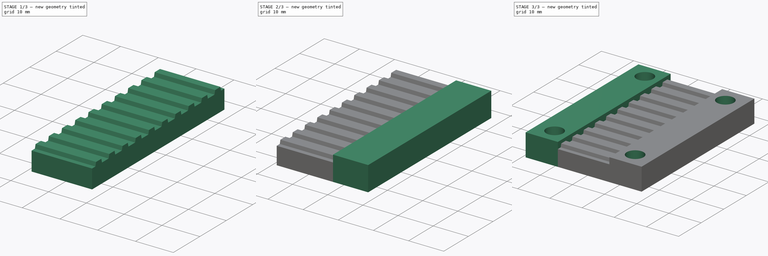
[diagram: build sequence overview — one tinted view per stage of 3, left to right]
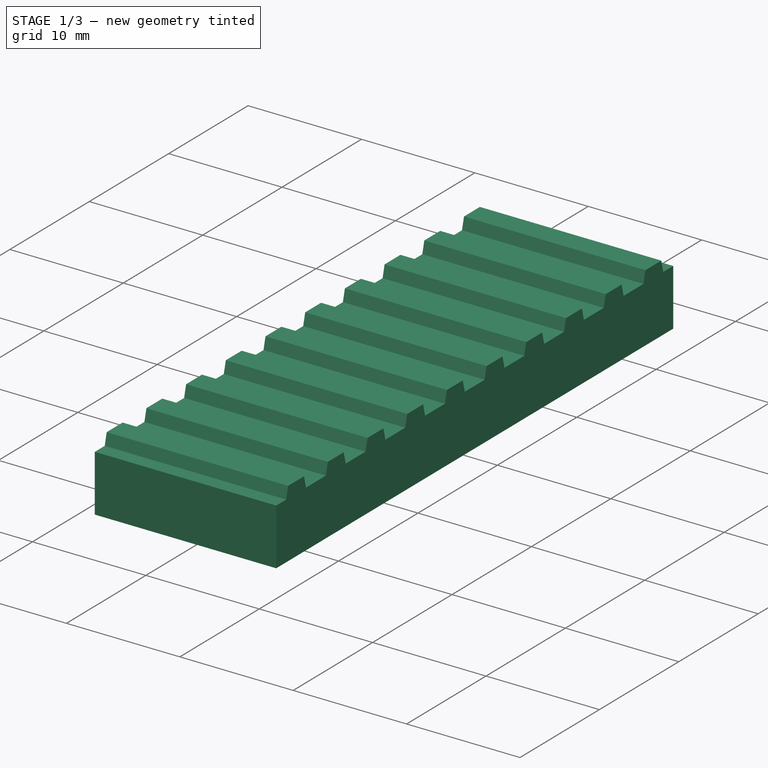
[diagram: stage 1 of 3 — iso view after this stage's code; geometry added in this stage tinted green]
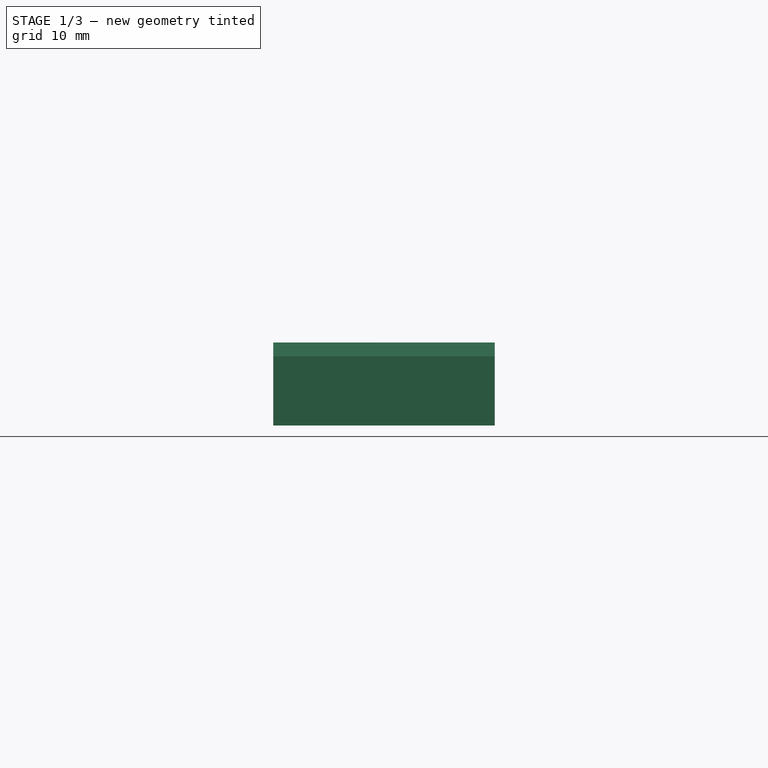
[diagram: stage 1 of 3 — front view after this stage's code; geometry added in this stage tinted green]
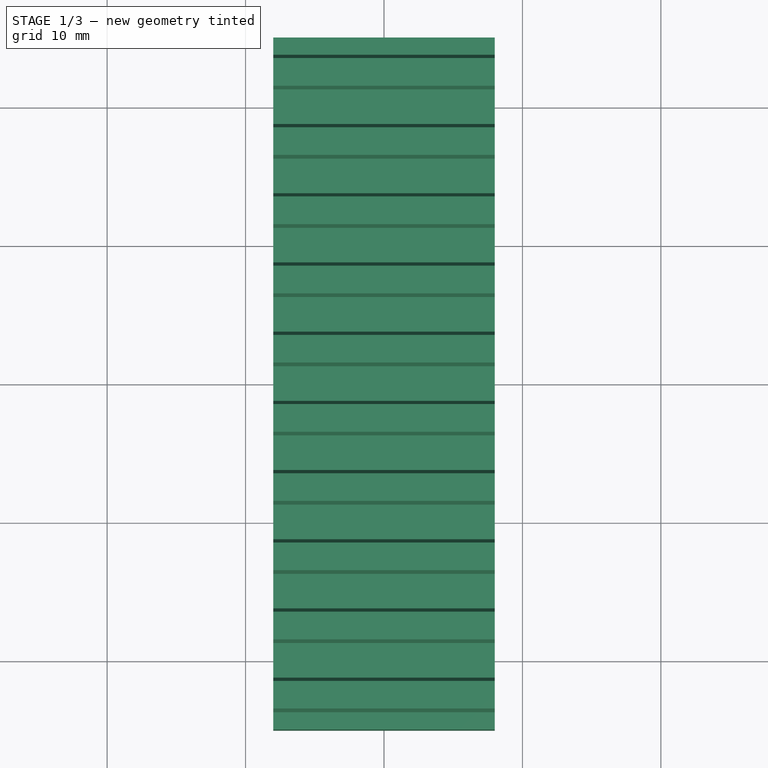
[diagram: stage 1 of 3 — top view after this stage's code; geometry added in this stage tinted green]
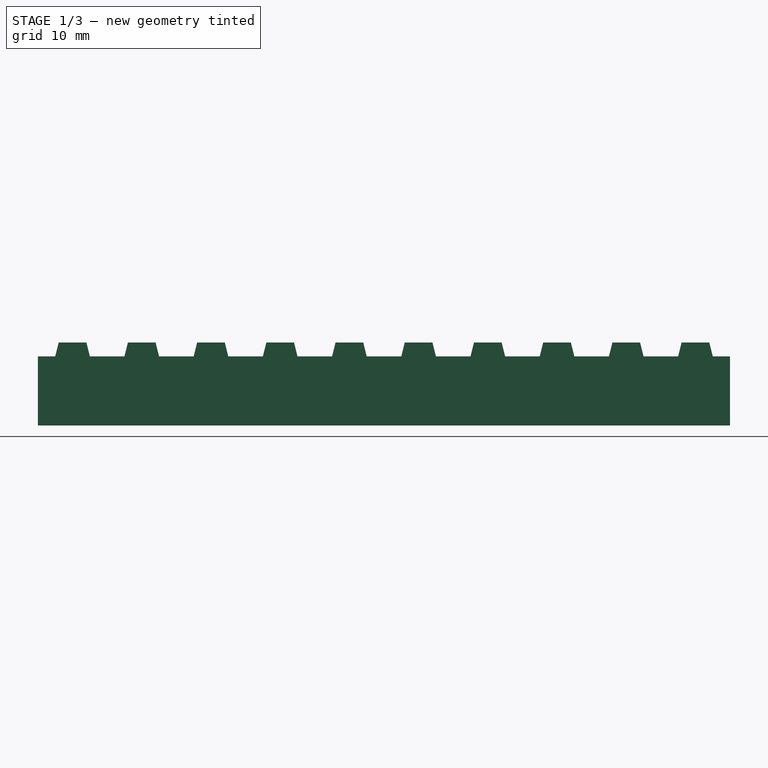
[diagram: stage 1 of 3 — right view after this stage's code; geometry added in this stage tinted green]
FCSTD DOCUMENT  (FreeCAD 0.21R33771 (Git))
Label: MasterLink-16mm
License: All rights reserved
LicenseURL: https://en.wikipedia.org/wiki/All_rights_reserved
objects: Sketcher::SketchObject×5, PartDesign::Pad×4, PartDesign::Pocket×1, PartDesign::Body×1
note: 16 computed .brp shape members not serialized (recipe doc carries the construction recipe); baked Part::Feature solids carry a one-line shape summary decoded from their .brp

FEATURE [Sketcher::SketchObject] Sketch
  FullyConstrained = true
  MapMode = 5
  Support = -> [XY_Plane]
  sketch-geometry (4):
    g0: LineSegment StartX=-8 StartY=-25 StartZ=0 EndX=-8 EndY=25 EndZ=0
    g1: LineSegment StartX=-8 StartY=25 StartZ=0 EndX=8 EndY=25 EndZ=0
    g2: LineSegment StartX=8 StartY=25 StartZ=0 EndX=8 EndY=-25 EndZ=0
    g3: LineSegment StartX=8 StartY=-25 StartZ=0 EndX=-8 EndY=-25 EndZ=0
  constraints (12):
    c: Coincident(g0,g1)
    c: Horizontal(g1)
    c: Coincident(g1,g2)
    c: Vertical(g2)
    c: Coincident(g2,g3)
    c: Coincident(g3,g0)
    c: Horizontal(g3)
    c: Vertical(g0)
    c: DistanceX(g0,g-1) = 8
    c: DistanceX(g0,g1) = 16
    c: DistanceY(g-1,g0) = 25
    c: DistanceY(g2,g1) = 50
FEATURE [PartDesign::Pad] Pad
  Direction = (0,0,1)
  Length = 5
  Length2 = 10
  Profile = -> Sketch
  ReferenceAxis = -> Sketch [N_Axis]
  Type = 0
FEATURE [Sketcher::SketchObject] Sketch001
  ExternalGeometry = -> [Pad]
  FullyConstrained = true
  MapMode = 5
  Placement = pos=(8,0,0) rot=(0.57735,0.57735,0.57735;2.0944rad)
  Support = -> [Pad]
  sketch-geometry (40):
    g0: LineSegment StartX=-23.75 StartY=5 StartZ=0 EndX=-23.5 EndY=6 EndZ=0
    g1: LineSegment StartX=-23.5 StartY=6 StartZ=0 EndX=-21.5 EndY=6 EndZ=0
    g2: LineSegment StartX=-21.5 StartY=6 StartZ=0 EndX=-21.25 EndY=5 EndZ=0
    g3: LineSegment StartX=-21.25 StartY=5 StartZ=0 EndX=-23.75 EndY=5 EndZ=0
    g4: LineSegment StartX=-18.75 StartY=5 StartZ=0 EndX=-18.5 EndY=6 EndZ=0
    g5: LineSegment StartX=-18.5 StartY=6 StartZ=0 EndX=-16.5 EndY=6 EndZ=0
    g6: LineSegment StartX=-16.5 StartY=6 StartZ=0 EndX=-16.25 EndY=5 EndZ=0
    g7: LineSegment StartX=-16.25 StartY=5 StartZ=0 EndX=-18.75 EndY=5 EndZ=0
    g8: LineSegment StartX=-13.75 StartY=5 StartZ=0 EndX=-13.5 EndY=6 EndZ=0
    g9: LineSegment StartX=-13.5 StartY=6 StartZ=0 EndX=-11.5 EndY=6 EndZ=0
    g10: LineSegment StartX=-11.5 StartY=6 StartZ=0 EndX=-11.25 EndY=5 EndZ=0
    g11: LineSegment StartX=-13.75 StartY=5 StartZ=0 EndX=-11.25 EndY=5 EndZ=0
    g12: LineSegment StartX=-8.75 StartY=5 StartZ=0 EndX=-8.5 EndY=6 EndZ=0
    g13: LineSegment StartX=-8.5 StartY=6 StartZ=0 EndX=-6.5 EndY=6 EndZ=0
    g14: LineSegment StartX=-6.5 StartY=6 StartZ=0 EndX=-6.25 EndY=5 EndZ=0
    g15: LineSegment StartX=-6.25 StartY=5 StartZ=0 EndX=-8.75 EndY=5 EndZ=0
    g16: LineSegment StartX=-3.75 StartY=5 StartZ=0 EndX=-3.5 EndY=6 EndZ=0
    g17: LineSegment StartX=-3.5 StartY=6 StartZ=0 EndX=-1.5 EndY=6 EndZ=0
    g18: LineSegment StartX=-1.5 StartY=6 StartZ=0 EndX=-1.25 EndY=5 EndZ=0
    g19: LineSegment StartX=-1.25 StartY=5 StartZ=0 EndX=-3.75 EndY=5 EndZ=0
    g20: LineSegment StartX=1.25 StartY=5 StartZ=0 EndX=1.5 EndY=6 EndZ=0
    g21: LineSegment StartX=1.5 StartY=6 StartZ=0 EndX=3.5 EndY=6 EndZ=0
    g22: LineSegment StartX=3.5 StartY=6 StartZ=0 EndX=3.75 EndY=5 EndZ=0
    g23: LineSegment StartX=3.75 StartY=5 StartZ=0 EndX=1.25 EndY=5 EndZ=0
    g24: LineSegment StartX=6.25 StartY=5 StartZ=0 EndX=6.5 EndY=6 EndZ=0
    g25: LineSegment StartX=6.5 StartY=6 StartZ=0 EndX=8.5 EndY=6 EndZ=0
    g26: LineSegment StartX=8.5 StartY=6 StartZ=0 EndX=8.75 EndY=5 EndZ=0
    g27: LineSegment StartX=8.75 StartY=5 StartZ=0 EndX=6.25 EndY=5 EndZ=0
    g28: LineSegment StartX=11.25 StartY=5 StartZ=0 EndX=11.5 EndY=6 EndZ=0
    g29: LineSegment StartX=11.5 StartY=6 StartZ=0 EndX=13.5 EndY=6 EndZ=0
    g30: LineSegment StartX=13.5 StartY=6 StartZ=0 EndX=13.75 EndY=5 EndZ=0
    g31: LineSegment StartX=13.75 StartY=5 StartZ=0 EndX=11.25 EndY=5 EndZ=0
    g32: LineSegment StartX=16.25 StartY=5 StartZ=0 EndX=16.5 EndY=6 EndZ=0
    g33: LineSegment StartX=16.5 StartY=6 StartZ=0 EndX=18.5 EndY=6 EndZ=0
    g34: LineSegment StartX=18.5 StartY=6 StartZ=0 EndX=18.75 EndY=5 EndZ=0
    g35: LineSegment StartX=18.75 StartY=5 StartZ=0 EndX=16.25 EndY=5 EndZ=0
    g36: LineSegment StartX=21.25 StartY=5 StartZ=0 EndX=21.5 EndY=6 EndZ=0
    g37: LineSegment StartX=21.5 StartY=6 StartZ=0 EndX=23.5 EndY=6 EndZ=0
    g38: LineSegment StartX=23.5 StartY=6 StartZ=0 EndX=23.75 EndY=5 EndZ=0
    g39: LineSegment StartX=23.75 StartY=5 StartZ=0 EndX=21.25 EndY=5 EndZ=0
  constraints (120):
    c: PointOnObject(g0,g-3)
    c: Coincident(g0,g1)
    c: Horizontal(g1)
    c: Coincident(g1,g2)
    c: PointOnObject(g2,g-3)
    c: Coincident(g2,g3)
    c: Coincident(g3,g0)
    c: DistanceX(g0,g2) = 2.5
    c: DistanceX(g0,g1) = 2
    c: DistanceX(g-3,g0) = 1.25
    c: DistanceX(g0,g0) = 0.25
    c: DistanceY(g2,g1) = 1
    c: PointOnObject(g4,g-3)
    c: Coincident(g4,g5)
    c: Horizontal(g5)
    c: Coincident(g5,g6)
    c: PointOnObject(g6,g-3)
    c: Coincident(g6,g7)
    c: Coincident(g7,g4)
    c: DistanceX(g4,g5) = 2
    c: DistanceX(g4,g6) = 2.5
    c: DistanceX(g4,g4) = 0.25
    c: DistanceX(g2,g4) = 2.5
    c: DistanceY(g4,g4) = 1
    c: PointOnObject(g8,g-3)
    c: Coincident(g8,g9)
    c: Horizontal(g9)
    c: Coincident(g9,g10)
    c: PointOnObject(g10,g-3)
    c: Coincident(g8,g11)
    c: Coincident(g11,g10)
    c: PointOnObject(g12,g-3)
    c: Coincident(g12,g13)
    c: Horizontal(g13)
    c: Coincident(g13,g14)
    c: PointOnObject(g14,g-3)
    c: Coincident(g14,g15)
    c: Coincident(g15,g12)
    c: PointOnObject(g16,g-3)
    c: Coincident(g16,g17)
    c: Horizontal(g17)
    c: Coincident(g17,g18)
    c: PointOnObject(g18,g-3)
    c: Coincident(g18,g19)
    c: Coincident(g19,g16)
    c: PointOnObject(g20,g-3)
    c: Coincident(g20,g21)
    c: Horizontal(g21)
    c: Coincident(g21,g22)
    c: PointOnObject(g22,g-3)
    c: Coincident(g22,g23)
    c: Coincident(g23,g20)
    c: DistanceX(g6,g8) = 2.5
    c: DistanceX(g8,g10) = 2.5
    c: DistanceX(g8,g9) = 2
    c: DistanceX(g8,g8) = 0.25
    c: DistanceY(g8,g8) = 1
    c: DistanceX(g10,g12) = 2.5
    c: DistanceX(g12,g14) = 2.5
    c: DistanceX(g12,g13) = 2
    c: DistanceX(g12,g12) = 0.25
    c: DistanceY(g12,g12) = 1
    c: DistanceX(g14,g16) = 2.5
    c: DistanceX(g16,g18) = 2.5
    c: DistanceX(g16,g17) = 2
    c: DistanceX(g16,g16) = 0.25
    c: DistanceY(g16,g16) = 1
    c: DistanceX(g18,g20) = 2.5
    c: DistanceX(g20,g22) = 2.5
    c: DistanceX(g20,g21) = 2
    c: DistanceX(g20,g20) = 0.25
    c: DistanceY(g20,g20) = 1
    c: PointOnObject(g24,g-3)
    c: Coincident(g24,g25)
    c: Horizontal(g25)
    c: Coincident(g25,g26)
    c: PointOnObject(g26,g-3)
    c: Coincident(g26,g27)
    c: Coincident(g27,g24)
    c: PointOnObject(g28,g-3)
    c: Coincident(g28,g29)
    c: Horizontal(g29)
    c: Coincident(g29,g30)
    c: PointOnObject(g30,g-3)
    c: Coincident(g30,g31)
    c: Coincident(g31,g28)
    c: PointOnObject(g32,g-3)
    c: Coincident(g32,g33)
    c: Horizontal(g33)
    c: Coincident(g33,g34)
    c: PointOnObject(g34,g-3)
    c: Coincident(g34,g35)
    c: Coincident(g35,g32)
    c: PointOnObject(g36,g-3)
    c: Coincident(g36,g37)
    c: Horizontal(g37)
    c: Coincident(g37,g38)
    c: PointOnObject(g38,g-3)
    c: Coincident(g38,g39)
    c: Coincident(g39,g36)
    c: DistanceX(g22,g24) = 2.5
    c: DistanceX(g24,g26) = 2.5
    c: DistanceX(g26,g28) = 2.5
    c: DistanceX(g24,g25) = 2
    c: DistanceX(g25,g26) = 0.25
    c: DistanceY(g24,g24) = 1
    c: DistanceX(g32,g34) = 2.5
    c: DistanceX(g32,g33) = 2
    c: DistanceX(g33,g34) = 0.25
    c: DistanceX(g39,g39) = 2.5
    c: DistanceX(g36,g37) = 2
    c: DistanceX(g36,g36) = 0.25
    c: DistanceX(g34,g36) = 2.5
    c: DistanceX(g38,g-3) = 1.25
    c: DistanceX(g30,g32) = 2.5
    c: DistanceX(g29,g30) = 0.25
    c: DistanceX(g28,g29) = 2
    c: DistanceY(g28,g28) = 1
    c: DistanceY(g32,g32) = 1
    c: DistanceY(g36,g36) = 1
FEATURE [PartDesign::Pad] Pad001
  BaseFeature = -> Pad
  Direction = (1,0,0)
  Length = 16
  Length2 = 10
  Profile = -> Sketch001
  ReferenceAxis = -> Sketch001 [N_Axis]
  Reversed = true
  Type = 0
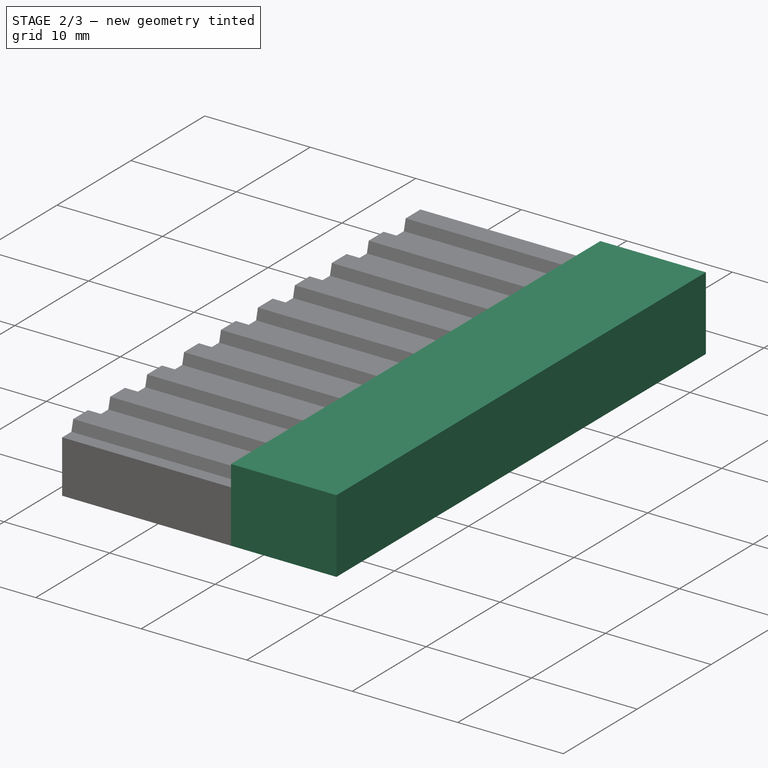
[diagram: stage 2 of 3 — iso view after this stage's code; geometry added in this stage tinted green]
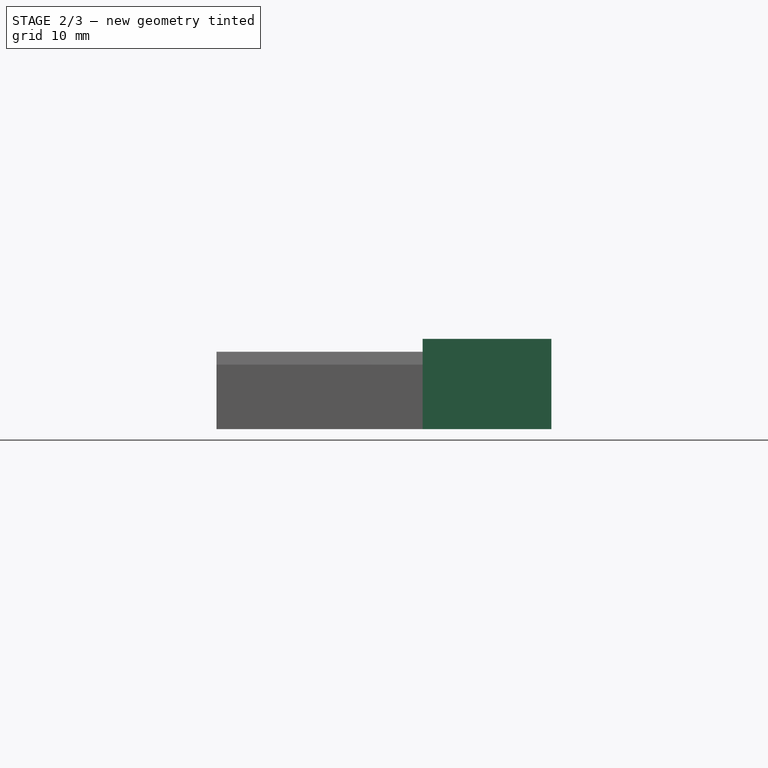
[diagram: stage 2 of 3 — front view after this stage's code; geometry added in this stage tinted green]
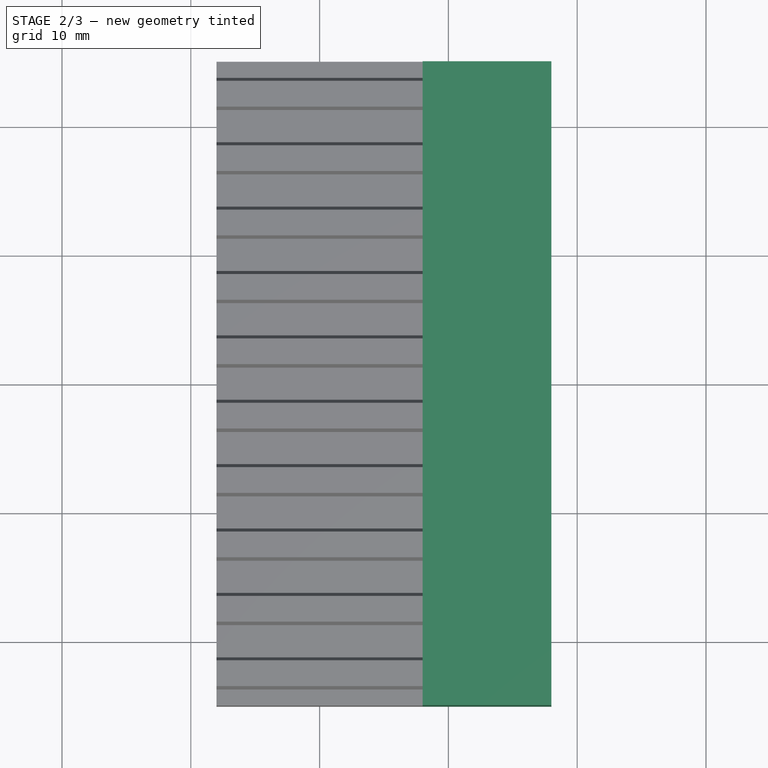
[diagram: stage 2 of 3 — top view after this stage's code; geometry added in this stage tinted green]
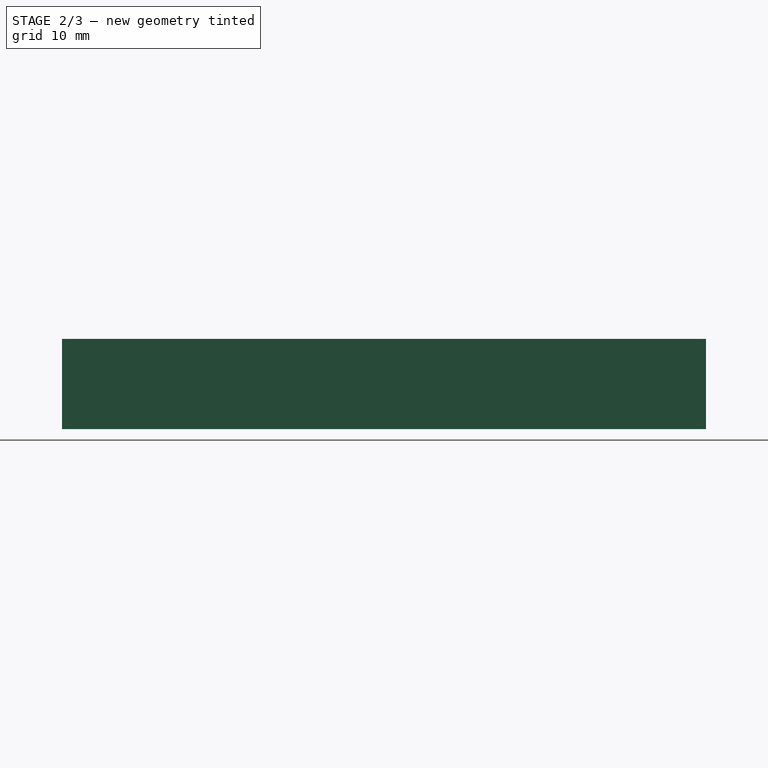
[diagram: stage 2 of 3 — right view after this stage's code; geometry added in this stage tinted green]
FEATURE [Sketcher::SketchObject] Sketch002
  ExternalGeometry = -> [Pad001]
  FullyConstrained = true
  MapMode = 5
  Placement = pos=(0,0,0) rot=(1,0,0;3.14159rad)
  Support = -> [Pad001]
  sketch-geometry (4):
    g0: LineSegment StartX=8 StartY=25 StartZ=0 EndX=18 EndY=25 EndZ=0
    g1: LineSegment StartX=18 StartY=25 StartZ=0 EndX=18 EndY=-25 EndZ=0
    g2: LineSegment StartX=18 StartY=-25 StartZ=0 EndX=8 EndY=-25 EndZ=0
    g3: LineSegment StartX=8 StartY=-25 StartZ=0 EndX=8 EndY=25 EndZ=0
  constraints (10):
    c: Coincident(g-3,g0)
    c: Horizontal(g0)
    c: Coincident(g0,g1)
    c: Vertical(g1)
    c: Coincident(g1,g2)
    c: Coincident(g2,g-3)
    c: Horizontal(g2)
    c: Coincident(g2,g3)
    c: Coincident(g3,g0)
    c: DistanceX(g0,g0) = 10
FEATURE [PartDesign::Pad] Pad002
  BaseFeature = -> Pad001
  Direction = (0,0,-1)
  Length = 7
  Length2 = 10
  Profile = -> Sketch002
  ReferenceAxis = -> Sketch002 [N_Axis]
  Reversed = true
  Type = 0
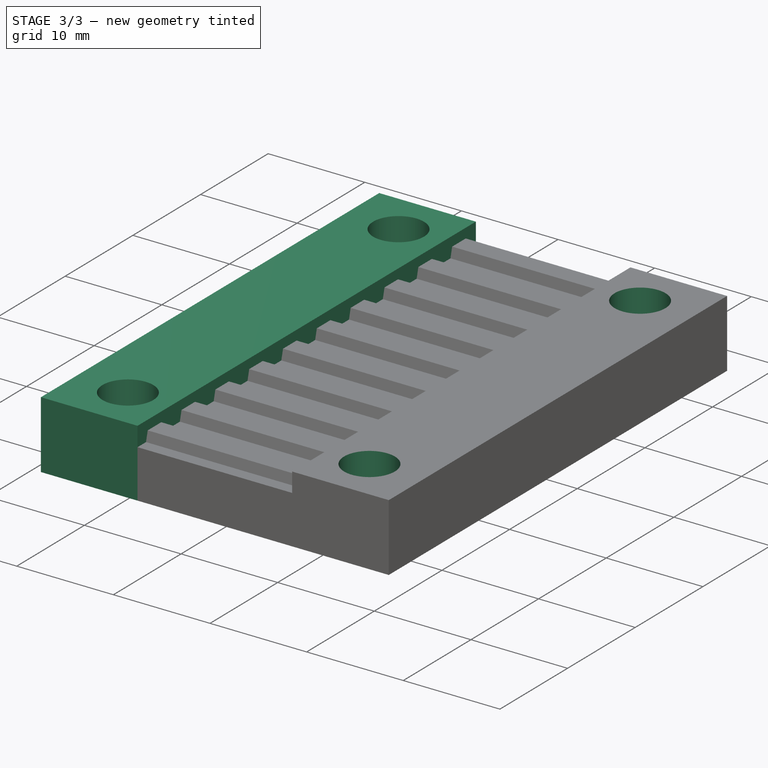
[diagram: stage 3 of 3 — iso view after this stage's code; geometry added in this stage tinted green]
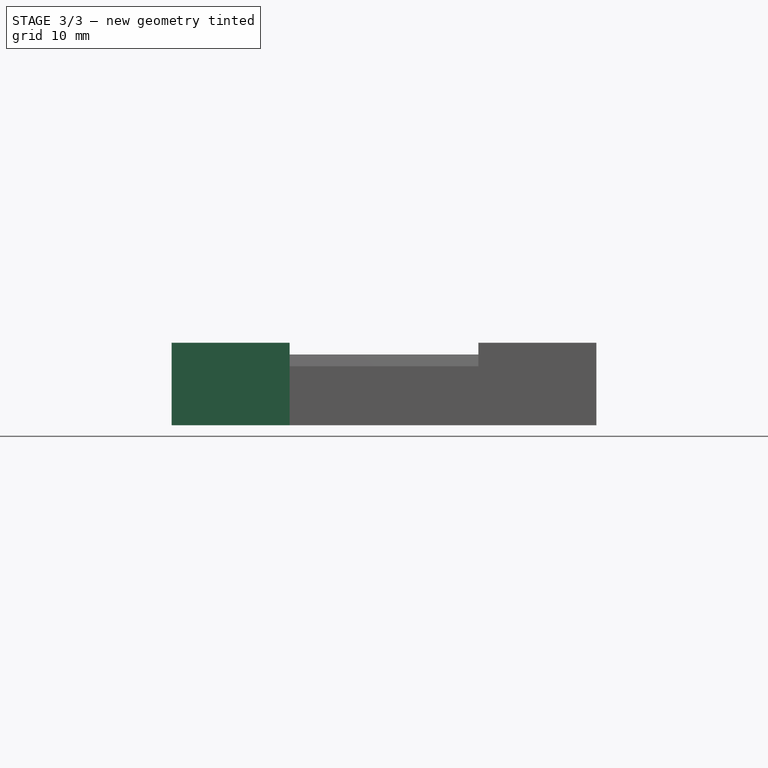
[diagram: stage 3 of 3 — front view after this stage's code; geometry added in this stage tinted green]
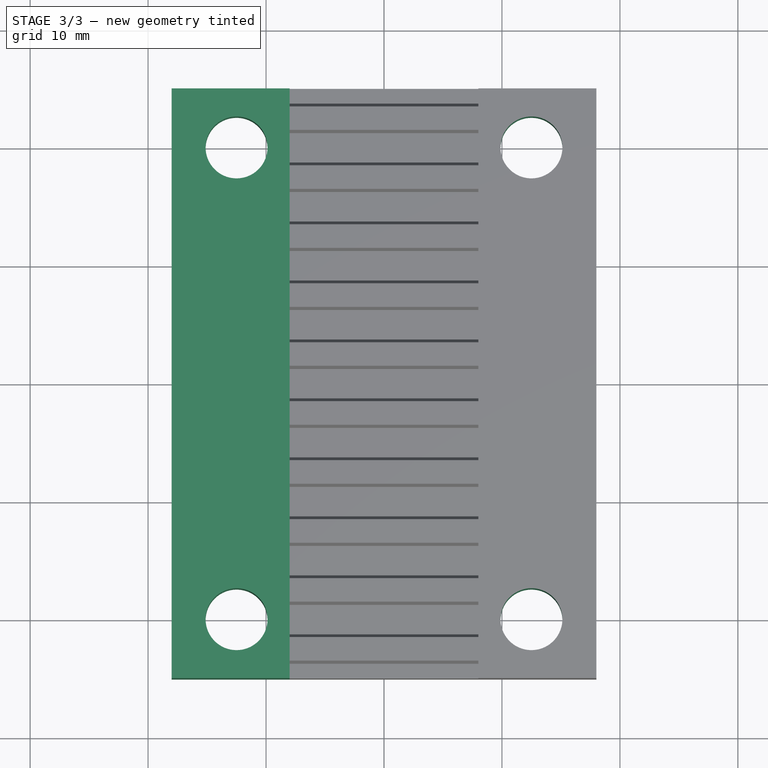
[diagram: stage 3 of 3 — top view after this stage's code; geometry added in this stage tinted green]
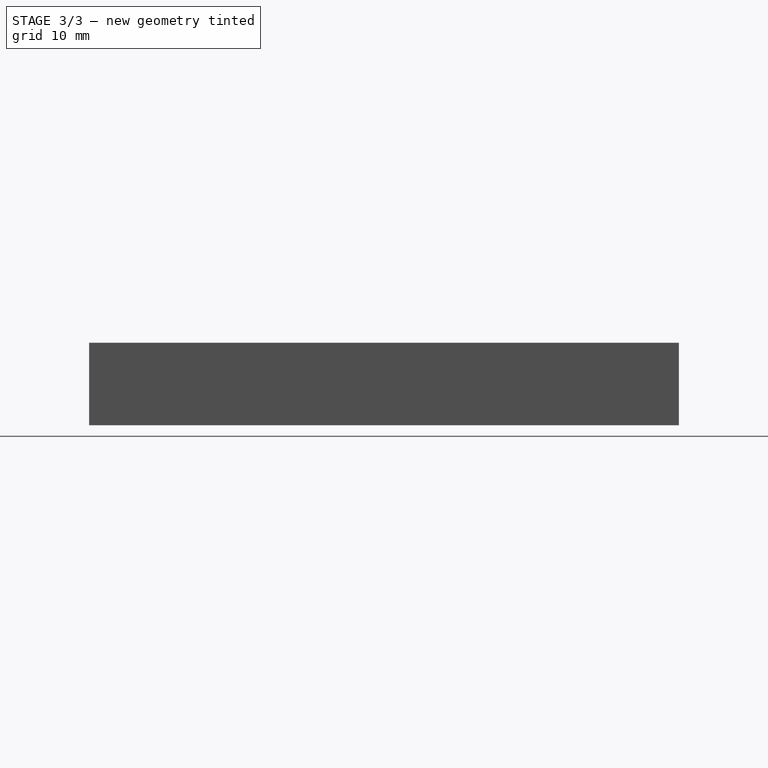
[diagram: stage 3 of 3 — right view after this stage's code; geometry added in this stage tinted green]
FEATURE [Sketcher::SketchObject] Sketch003
  ExternalGeometry = -> [Pad002]
  FullyConstrained = true
  MapMode = 5
  Placement = pos=(0,0,0) rot=(1,0,0;3.14159rad)
  Support = -> [Pad002]
  sketch-geometry (4):
    g0: LineSegment StartX=-8 StartY=25 StartZ=0 EndX=-8 EndY=-25 EndZ=0
    g1: LineSegment StartX=-8 StartY=-25 StartZ=0 EndX=-18 EndY=-25 EndZ=0
    g2: LineSegment StartX=-18 StartY=-25 StartZ=0 EndX=-18 EndY=25 EndZ=0
    g3: LineSegment StartX=-18 StartY=25 StartZ=0 EndX=-8 EndY=25 EndZ=0
  constraints (10):
    c: Coincident(g-3,g0)
    c: Coincident(g0,g-3)
    c: Coincident(g0,g1)
    c: Horizontal(g1)
    c: Coincident(g1,g2)
    c: Vertical(g2)
    c: Coincident(g2,g3)
    c: Coincident(g3,g0)
    c: Horizontal(g3)
    c: DistanceX(g2,g0) = 10
FEATURE [PartDesign::Pad] Pad003
  BaseFeature = -> Pad002
  Direction = (0,0,-1)
  Length = 7
  Length2 = 10
  Profile = -> Sketch003
  ReferenceAxis = -> Sketch003 [N_Axis]
  Reversed = true
  Type = 0
FEATURE [Sketcher::SketchObject] Sketch004
  FullyConstrained = true
  MapMode = 5
  Placement = pos=(0,0,0) rot=(1,0,0;3.14159rad)
  Support = -> [Pad003]
  sketch-geometry (4):
    g0: Circle CenterX=-12.5 CenterY=20 CenterZ=0 NormalX=0 NormalY=0 NormalZ=1 AngleXU=0 Radius=2.625
    g1: Circle CenterX=-12.5 CenterY=-20 CenterZ=0 NormalX=0 NormalY=0 NormalZ=1 AngleXU=0 Radius=2.625
    g2: Circle CenterX=12.5 CenterY=-20 CenterZ=0 NormalX=0 NormalY=0 NormalZ=1 AngleXU=0 Radius=2.625
    g3: Circle CenterX=12.5 CenterY=20 CenterZ=0 NormalX=0 NormalY=0 NormalZ=1 AngleXU=0 Radius=2.625
  constraints (12):
    c: Diameter(g3) = 5.25
    c: Diameter(g0) = 5.25
    c: Diameter(g1) = 5.25
    c: Diameter(g2) = 5.25
    c: DistanceY(g1,g0) = 40
    c: DistanceY(g2,g3) = 40
    c: DistanceY(g2,g-1) = 20
    c: DistanceY(g1,g-1) = 20
    c: DistanceX(g0,g3) = 25
    c: DistanceX(g1,g2) = 25
    c: DistanceX(g-1,g3) = 12.5
    c: DistanceX(g-1,g2) = 12.5
FEATURE [PartDesign::Pocket] Pocket
  BaseFeature = -> Pad003
  Direction = (0,0,1)
  Length = 7
  Length2 = 5
  Profile = -> Sketch004
  ReferenceAxis = -> Sketch004 [N_Axis]
  Type = 0
FEATURE [PartDesign::Body] Body
  Group = -> [Sketch,Pad,Sketch001,Pad001,Sketch002,Pad002,Sketch003,Pad003,Sketch004,Pocket]
  Origin = -> Origin
  Tip = -> Pocket
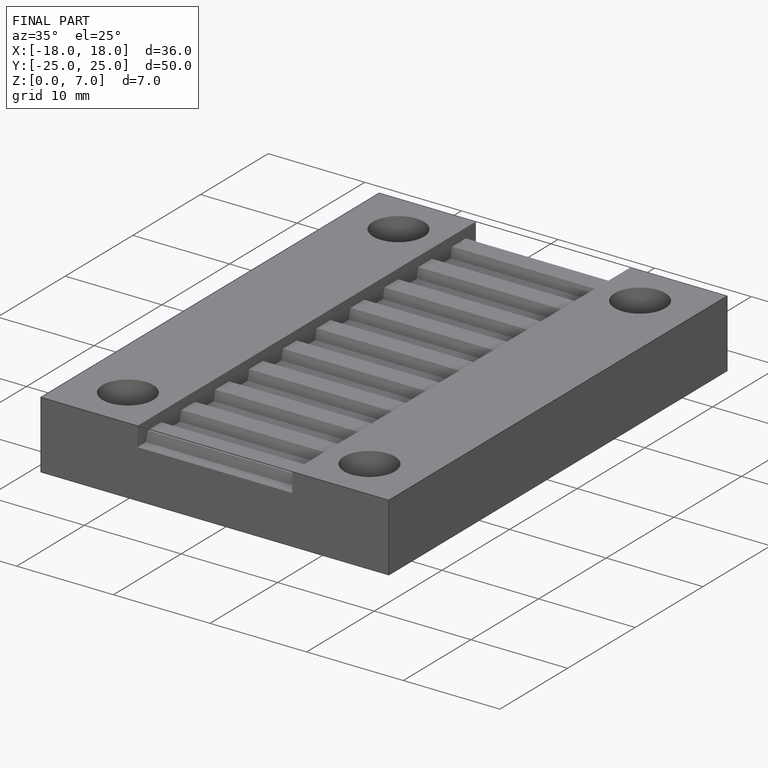
[diagram: finished part — iso view with bounding-box wireframe]
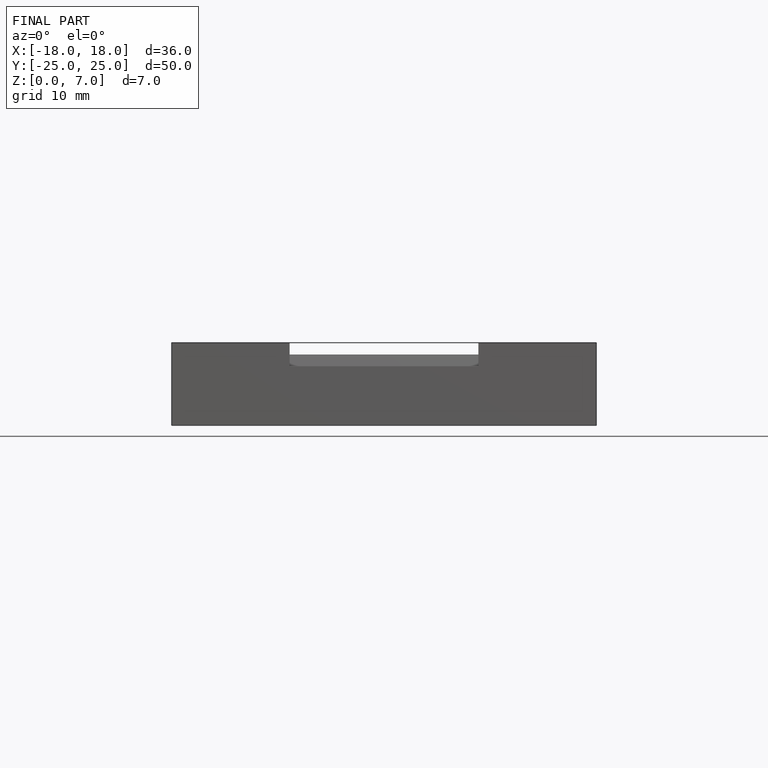
[diagram: finished part — front view with bounding-box wireframe]
